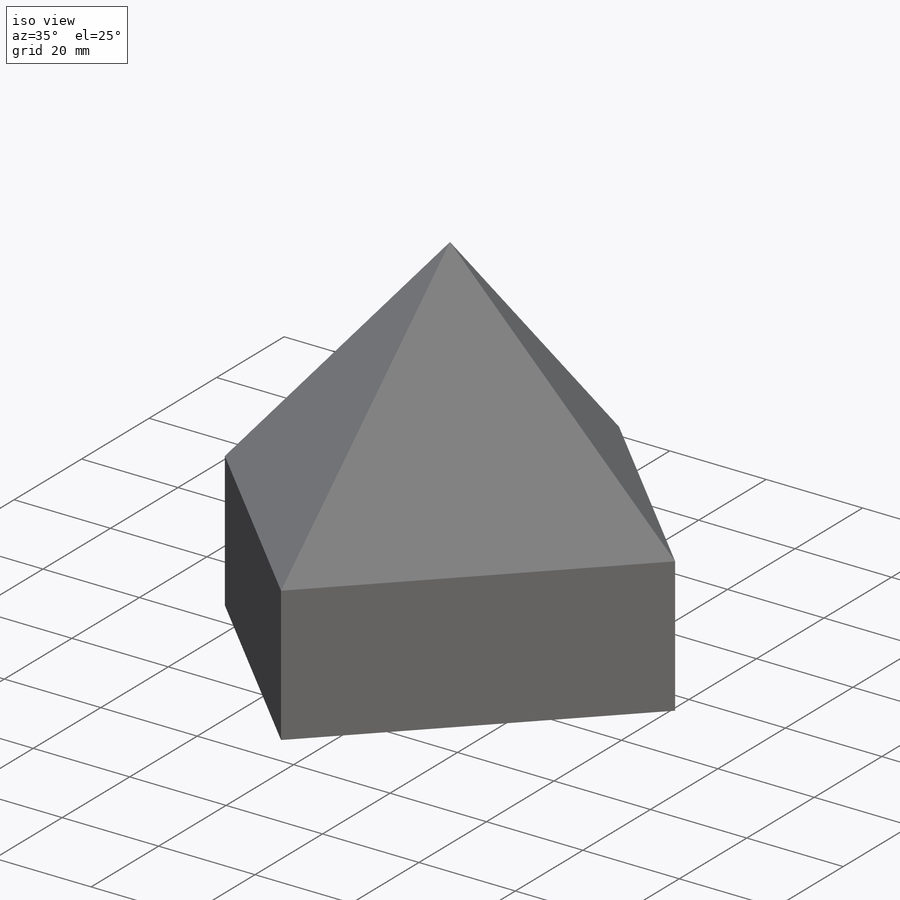
[diagram: iso view]
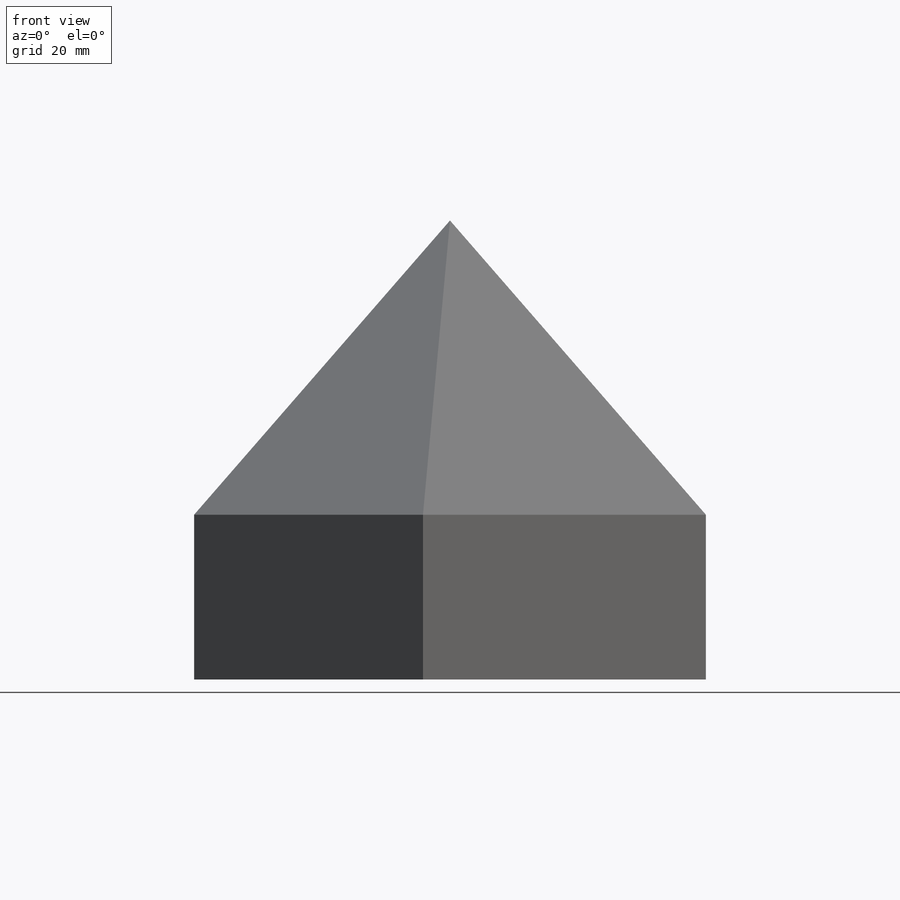
[diagram: front view]
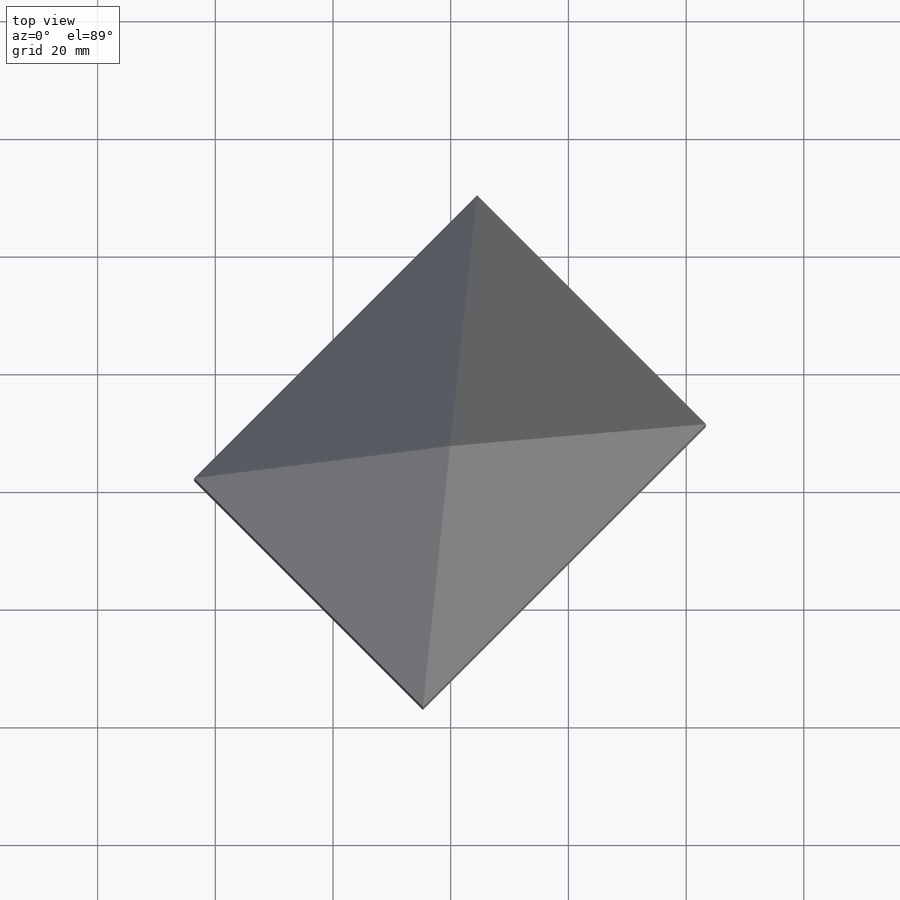
[diagram: top view]
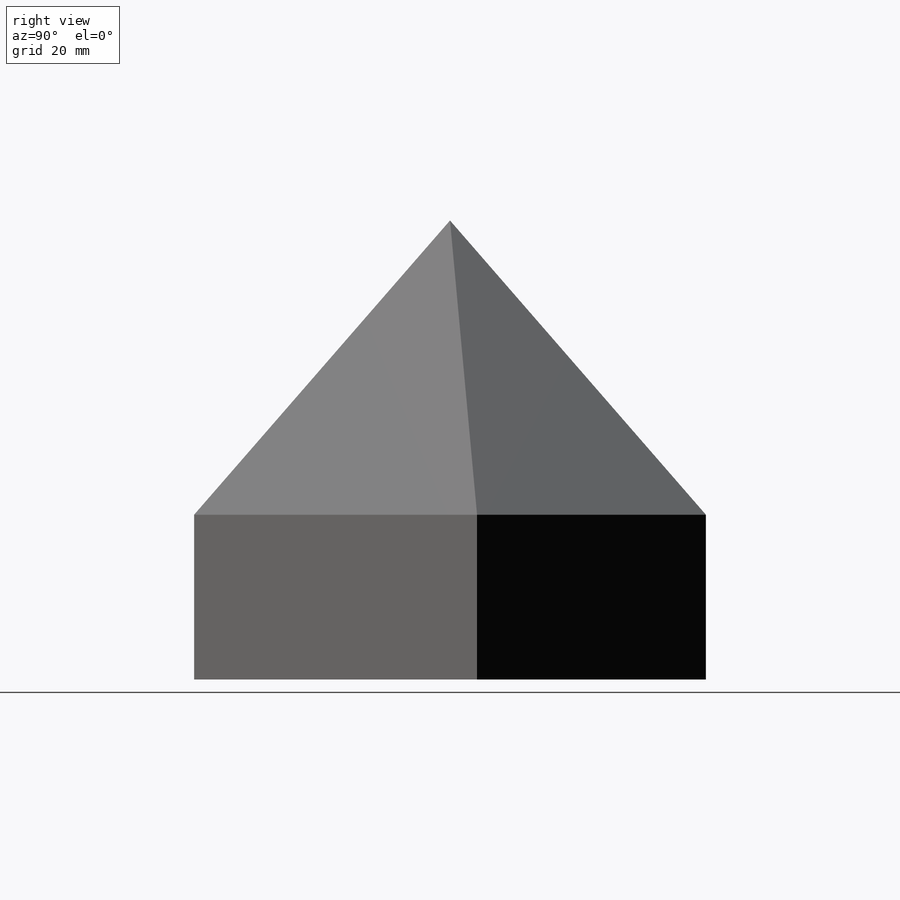
[diagram: right view]
SOLIDWORKS PART (.sldprt)
format: sldprt  version: not decoded by parser v0  size: 211,968 bytes
history: native  units: mm
features: sketch x5, plane x2, material x1, extrude x1 (+14 scaffold rows collapsed)
feature tree (23):
  scaffold x14  (default folders/planes/origin — collapsed)
  material  "Material <not specified>"
  sketch  "Sketch1"  dims[D1=68.0mm D2=55.0mm D3=10.0mm D4=55.0mm]
  extrude  "Extrude1"  Depth=28mm
  sketch  "Sketch2"
  plane  "Plane1"
  sketch  "Sketch3"  dims[D1=50.0mm]
  sketch  "Sketch4"  dims[c1.D1=~105.664113mm c2.D1=~36.434305deg c3.D1=42.0mm]
  sketch  "Sketch5"  dims[c1.D1=~14.609493mm c2.D1=60.0deg]
  plane  "Cutting Plane"
decode coverage: 5 of 6 modeling features carry decoded parameters
note: ~ marks probable driven/reference dimensions
note: suppression state not decoded; provenance and decode notes live in map.json
